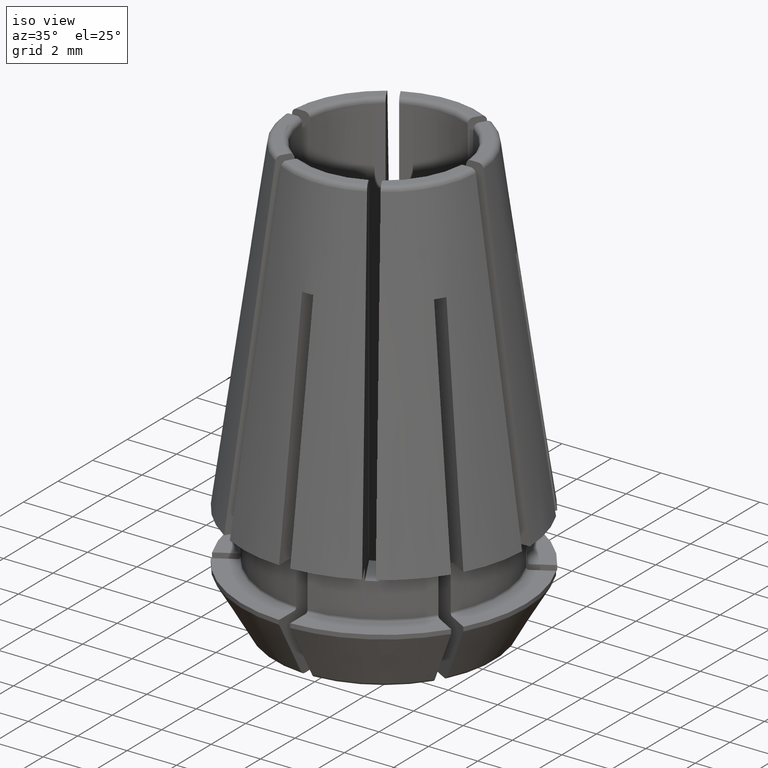
[diagram: clean part render]
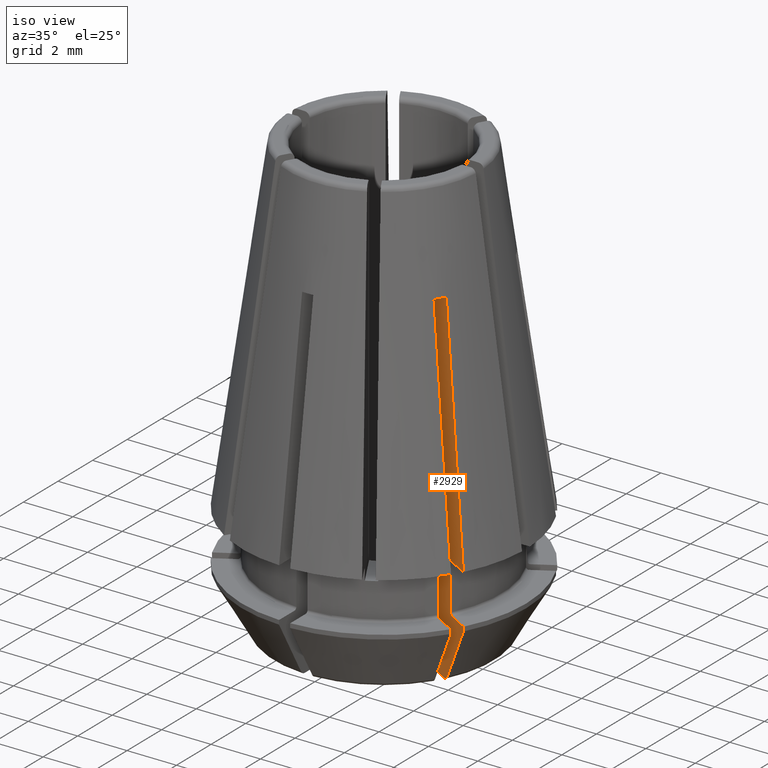
[diagram: same view with one face highlighted and labeled with its STEP entity id]
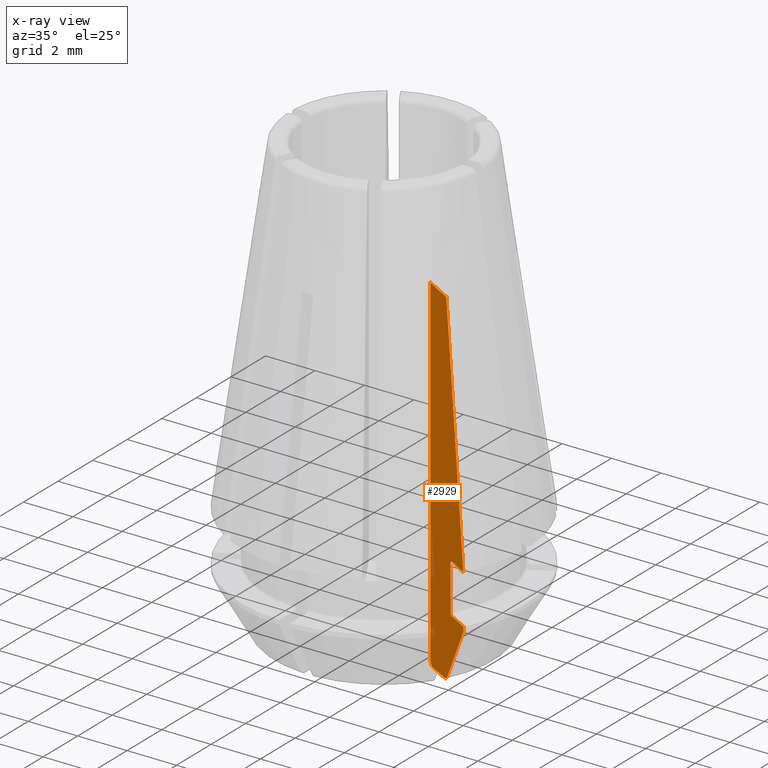
[diagram: x-ray of the same camera — body ghosted, the highlighted face saturated]
A machine part, iso view. The second image highlights one B-rep face of the part: STEP entity #2929.
The next image is the same camera in x-ray: the body ghosted, the highlighted face saturated — about 2% of this face is hidden behind the body in this view.
In plain terms, the highlighted planar face has unit normal (0.5, 0.866, 0).
Its self-contained STEP definition (entity closure, byte-faithful):
#96=LINE('',#4429,#264);
#158=LINE('',#4858,#326);
#174=LINE('',#5011,#342);
#207=LINE('',#5343,#375);
#208=LINE('',#5356,#376);
#209=LINE('',#5360,#377);
#232=LINE('',#5455,#400);
#264=VECTOR('',#3433,1000.);
#326=VECTOR('',#3661,1000.);
#342=VECTOR('',#3739,1000.);
#375=VECTOR('',#3912,1000.);
#376=VECTOR('',#3925,1000.);
#377=VECTOR('',#3930,1000.);
#400=VECTOR('',#4029,1000.);
#466=PLANE('',#3252);
#516=CIRCLE('',#3027,25.);
#606=CIRCLE('',#3211,11643.0879265068);
#1387=ORIENTED_EDGE('',*,*,#1546,.T.);
#1388=ORIENTED_EDGE('',*,*,#1932,.F.);
#1389=ORIENTED_EDGE('',*,*,#1934,.F.);
#1390=ORIENTED_EDGE('',*,*,#1936,.F.);
#1391=ORIENTED_EDGE('',*,*,#1939,.T.);
#1392=ORIENTED_EDGE('',*,*,#1937,.F.);
#1393=ORIENTED_EDGE('',*,*,#1541,.F.);
#1394=ORIENTED_EDGE('',*,*,#1787,.T.);
#1395=ORIENTED_EDGE('',*,*,#1980,.F.);
#1396=ORIENTED_EDGE('',*,*,#1834,.F.);
#1397=ORIENTED_EDGE('',*,*,#1981,.F.);
#1398=ORIENTED_EDGE('',*,*,#1646,.F.);
#1399=ORIENTED_EDGE('',*,*,#1650,.F.);
#1400=ORIENTED_EDGE('',*,*,#1982,.F.);
#1541=EDGE_CURVE('',#1997,#1998,#2296,.T.);
#1546=EDGE_CURVE('',#1999,#2002,#2298,.T.);
#1646=EDGE_CURVE('',#2094,#2095,#96,.T.);
#1650=EDGE_CURVE('',#2097,#2094,#516,.T.);
#1787=EDGE_CURVE('',#1997,#2197,#158,.T.);
#1834=EDGE_CURVE('',#2226,#2227,#174,.T.);
#1932=EDGE_CURVE('',#2274,#2002,#207,.T.);
#1934=EDGE_CURVE('',#2275,#2274,#2417,.T.);
#1936=EDGE_CURVE('',#2276,#2275,#606,.T.);
#1937=EDGE_CURVE('',#1998,#2277,#208,.T.);
#1939=EDGE_CURVE('',#2276,#2277,#209,.T.);
#1980=EDGE_CURVE('',#2227,#2197,#2420,.T.);
#1981=EDGE_CURVE('',#2095,#2226,#2421,.T.);
#1982=EDGE_CURVE('',#1999,#2097,#232,.T.);
#1997=VERTEX_POINT('',#4073);
#1998=VERTEX_POINT('',#4078);
#1999=VERTEX_POINT('',#4082);
#2002=VERTEX_POINT('',#4090);
#2094=VERTEX_POINT('',#4428);
#2095=VERTEX_POINT('',#4430);
#2097=VERTEX_POINT('',#4441);
#2197=VERTEX_POINT('',#4857);
#2226=VERTEX_POINT('',#5010);
#2227=VERTEX_POINT('',#5012);
#2274=VERTEX_POINT('',#5342);
#2275=VERTEX_POINT('',#5346);
#2276=VERTEX_POINT('',#5353);
#2277=VERTEX_POINT('',#5357);
#2296=B_SPLINE_CURVE_WITH_KNOTS('',3,(#4074,#4075,#4076,#4077),
 .UNSPECIFIED.,.F.,.F.,(4,4),(4.33680868994202E-19,0.000156301568180437),
 .UNSPECIFIED.);
#2298=B_SPLINE_CURVE_WITH_KNOTS('',3,(#4091,#4092,#4093,#4094),
 .UNSPECIFIED.,.F.,.F.,(4,4),(0.,0.000312798520369468),.UNSPECIFIED.);
#2417=B_SPLINE_CURVE_WITH_KNOTS('',3,(#5347,#5348,#5349,#5350),
 .UNSPECIFIED.,.F.,.F.,(4,4),(1.94894078766766E-16,0.000260998560704445),
 .UNSPECIFIED.);
#2420=B_SPLINE_CURVE_WITH_KNOTS('',3,(#5444,#5445,#5446,#5447),
 .UNSPECIFIED.,.F.,.F.,(4,4),(3.17051045093106E-18,0.000156301684380131),
 .UNSPECIFIED.);
#2421=B_SPLINE_CURVE_WITH_KNOTS('',3,(#5448,#5449,#5450,#5451,#5452,#5453,
#5454),.UNSPECIFIED.,.F.,.F.,(4,3,4),(2.01970607867407E-7,0.00775094489359805,
0.00959374956587994),.UNSPECIFIED.);
#2571=EDGE_LOOP('',(#1387,#1388,#1389,#1390,#1391,#1392,#1393,#1394,#1395,
#1396,#1397,#1398,#1399,#1400));
#2729=FACE_BOUND('',#2571,.T.);
#2929=ADVANCED_FACE('',(#2729),#466,.F.);
#3027=AXIS2_PLACEMENT_3D('',#4440,#3442,#3443);
#3211=AXIS2_PLACEMENT_3D('',#5354,#3921,#3922);
#3252=AXIS2_PLACEMENT_3D('',#5443,#4027,#4028);
#3433=DIRECTION('',(0.866025403784438,-0.5,0.));
#3442=DIRECTION('',(0.5,0.866025403784439,0.));
#3443=DIRECTION('',(0.,0.,-1.));
#3661=DIRECTION('',(0.,0.,1.));
#3739=DIRECTION('',(-0.866025403784438,0.5,0.));
#3912=DIRECTION('',(-0.866025403784438,0.5,0.));
#3921=DIRECTION('',(0.499999999997077,0.866025403786126,2.03322417782226E-12));
#3922=DIRECTION('',(0.749862725980902,-0.432933446695792,-0.50027444759511));
#3925=DIRECTION('',(0.866025403784438,-0.5,0.));
#3930=DIRECTION('',(0.,0.,1.));
#4027=DIRECTION('',(0.5,0.866025403784438,0.));
#4028=DIRECTION('',(0.866025403784438,-0.5,0.));
#4029=DIRECTION('',(0.,0.,1.));
#4073=CARTESIAN_POINT('',(4.22150307252258,-2.1774783141704,-1.9));
#4074=CARTESIAN_POINT('',(4.22150307252259,-2.17747831417039,-1.9));
#4075=CARTESIAN_POINT('',(4.22150307252259,-2.17747831417039,-1.95285100947389));
#4076=CARTESIAN_POINT('',(4.26243202373113,-2.2011086551683,-2.0000000000005));
#4077=CARTESIAN_POINT('',(4.30820092475621,-2.22753334249564,-2.0000000000005));
#4078=CARTESIAN_POINT('',(4.3082009247562,-2.22753334249564,-2.00000000000025));
#4082=CARTESIAN_POINT('',(2.8552176303805,-1.3886530463598,-4.3));
#4090=CARTESIAN_POINT('',(3.02883331428354,-1.48889010819676,-4.5));
#4091=CARTESIAN_POINT('',(2.85521763038051,-1.38865304635979,-4.3));
#4092=CARTESIAN_POINT('',(2.85521763038051,-1.38865304635979,-4.4057690042071));
#4093=CARTESIAN_POINT('',(2.9372407470371,-1.43600911484125,-4.50000000000093));
#4094=CARTESIAN_POINT('',(3.02883331428334,-1.48889010819664,-4.50000000000106));
#4428=CARTESIAN_POINT('',(2.8621306570156,-1.3926442841485,9.5));
#4429=CARTESIAN_POINT('',(2.8621306570156,-1.3926442841485,9.5));
#4430=CARTESIAN_POINT('',(3.93091414398843,-2.0097067180577,9.5));
#4440=CARTESIAN_POINT('',(19.0135044375954,-10.7176442841485,-7.14864859380487));
#4441=CARTESIAN_POINT('',(2.8552176303805,-1.38865304635981,9.49105362531695));
#4857=CARTESIAN_POINT('',(4.22150307252258,-2.1774783141704,-0.100000000000003));
#4858=CARTESIAN_POINT('',(4.22150307252258,-2.17747831417041,60.));
#5010=CARTESIAN_POINT('',(5.08833221682565,-2.6779423539752,0.));
#5011=CARTESIAN_POINT('',(4.25244473891685,-2.19534249359231,1.0842021724855E-16));
#5012=CARTESIAN_POINT('',(4.3082009247562,-2.22753334249564,-2.7365690490766E-28));
#5342=CARTESIAN_POINT('',(3.79860194739889,-1.93331623573964,-4.5));
#5343=CARTESIAN_POINT('',(0.112500000000003,0.194855715851504,-4.5));
#5346=CARTESIAN_POINT('',(3.98635106143354,-2.04171323726767,-4.37500000000023));
#5347=CARTESIAN_POINT('',(3.98635106143358,-2.04171323726767,-4.375));
#5348=CARTESIAN_POINT('',(3.94809994045365,-2.01962894227311,-4.45140564544212));
#5349=CARTESIAN_POINT('',(3.87502932321255,-1.97744160173911,-4.5));
#5350=CARTESIAN_POINT('',(3.79860194739889,-1.93331623573963,-4.5));
#5353=CARTESIAN_POINT('',(5.08833221682565,-2.6779423539752,-2.17320508075687));
#5354=CARTESIAN_POINT('',(-8725.62931918886,5038.00424385076,5822.5661756537));
#5356=CARTESIAN_POINT('',(4.2464101615138,-2.19185842870422,-2.));
#5357=CARTESIAN_POINT('',(5.08833221682565,-2.6779423539752,-2.));
#5360=CARTESIAN_POINT('',(5.08833221682565,-2.6779423539752,60.));
#5443=CARTESIAN_POINT('',(19.0135044375954,-10.7176442841485,-7.14864859380487));
#5444=CARTESIAN_POINT('',(4.3082009247562,-2.22753334249563,-5.46964104205975E-28));
#5445=CARTESIAN_POINT('',(4.26243114159226,-2.20110814586518,-2.55795304552378E-15));
#5446=CARTESIAN_POINT('',(4.22150307252225,-2.17747831417019,-4.71479777662714E-02));
#5447=CARTESIAN_POINT('',(4.2215030725222,-2.17747831417017,-9.99999999999019E-02));
#5448=CARTESIAN_POINT('',(3.93091414398843,-2.0097067180577,9.5));
#5449=CARTESIAN_POINT('',(4.24270387143508,-2.18971860112958,6.94162677884326));
#5450=CARTESIAN_POINT('',(4.55440010231293,-2.36967650393229,4.38323836467075));
#5451=CARTESIAN_POINT('',(4.8660489428369,-2.54960704590144,1.82484225554554));
#5452=CARTESIAN_POINT('',(4.94014609008559,-2.59238705381165,1.21656194588803));
#5453=CARTESIAN_POINT('',(5.01424039312911,-2.63516541961926,0.608281174271124));
#5454=CARTESIAN_POINT('',(5.08833221682564,-2.6779423539752,-1.7716924013354E-15));
#5455=CARTESIAN_POINT('',(2.8552176303805,-1.38865304635981,60.));